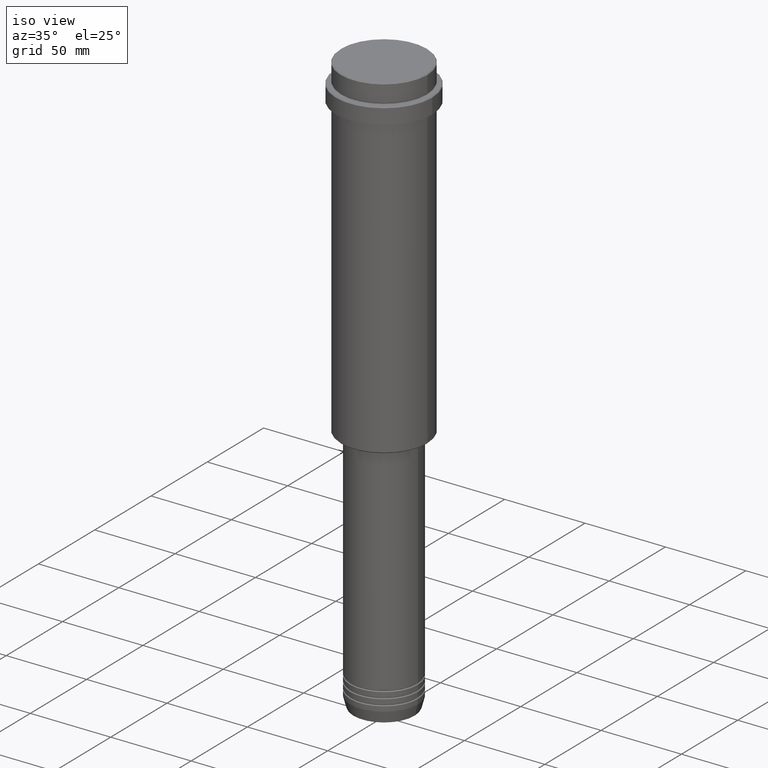
[diagram: clean part render]
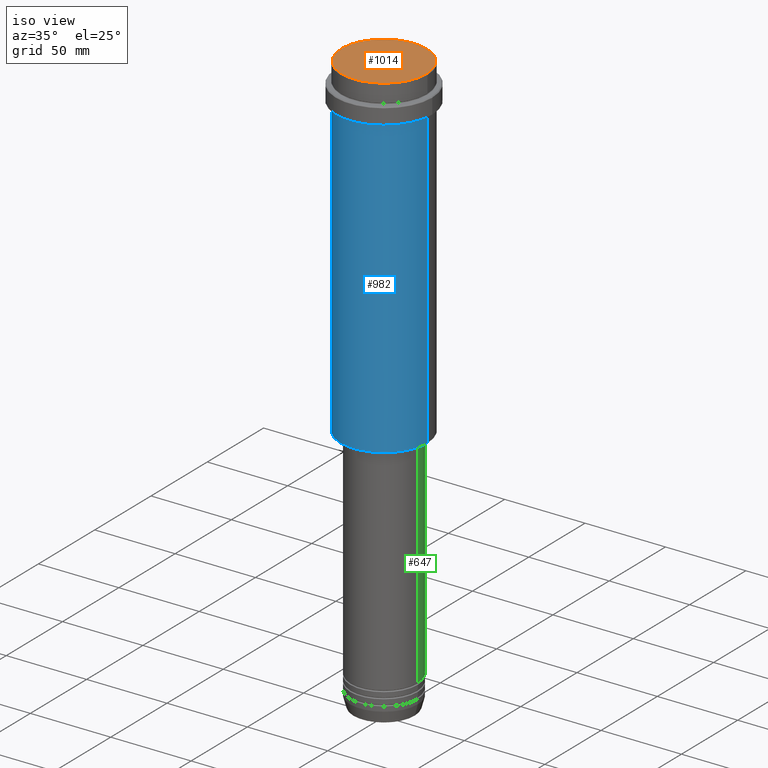
[diagram: same view with three faces highlighted in distinct colors, each labeled with its STEP entity id]
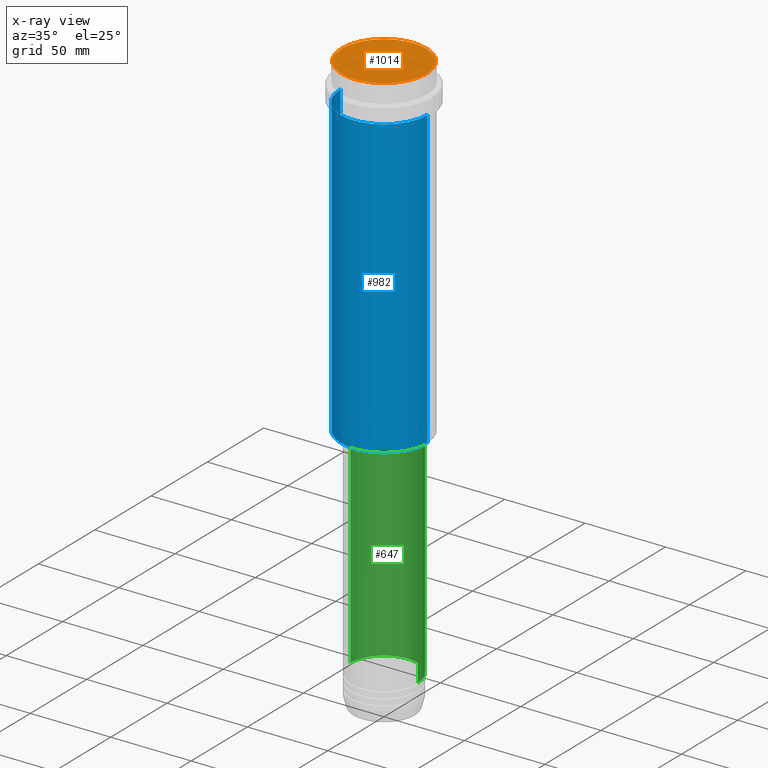
[diagram: x-ray of the same camera — body ghosted, the three highlighted faces saturated]
A machine part, iso view with three faces highlighted in distinct colors.
The next image is the same camera in x-ray (body ghosted, the three faces saturated) — at least one of them is partly hidden behind the body in this view.
Their STEP definitions:

[orange] entity #1014 — the highlighted planar face has unit normal (0, -0, 1).
#28 = DIRECTION ( 'NONE',  ( -0.000000000000000000, -0.000000000000000000, 1.000000000000000000 ) ) ;
#69 = DIRECTION ( 'NONE',  ( 1.000000000000000000, 0.000000000000000000, 0.000000000000000000 ) ) ;
#134 = AXIS2_PLACEMENT_3D ( 'NONE', #1004, #28, #1027 ) ;
#204 = VERTEX_POINT ( 'NONE', #855 ) ;
#207 = CIRCLE ( 'NONE', #134, 26.49999999999996803 ) ;
#296 = VERTEX_POINT ( 'NONE', #1302 ) ;
#342 = EDGE_LOOP ( 'NONE', ( #515, #617 ) ) ;
#438 = CARTESIAN_POINT ( 'NONE',  ( 0.000000000000000000, 0.000000000000000000, 0.000000000000000000 ) ) ;
#457 = DIRECTION ( 'NONE',  ( 1.000000000000000000, 0.000000000000000000, 0.000000000000000000 ) ) ;
#506 = AXIS2_PLACEMENT_3D ( 'NONE', #1265, #1045, #69 ) ;
#515 = ORIENTED_EDGE ( 'NONE', *, *, #846, .T. ) ;
#617 = ORIENTED_EDGE ( 'NONE', *, *, #715, .T. ) ;
#634 = PLANE ( 'NONE',  #506 ) ;
#646 = AXIS2_PLACEMENT_3D ( 'NONE', #438, #979, #457 ) ;
#715 = EDGE_CURVE ( 'NONE', #296, #204, #1245, .T. ) ;
#725 = FACE_OUTER_BOUND ( 'NONE', #342, .T. ) ;
#846 = EDGE_CURVE ( 'NONE', #204, #296, #207, .T. ) ;
#855 = CARTESIAN_POINT ( 'NONE',  ( -26.49999999999996803, 0.000000000000000000, 0.000000000000000000 ) ) ;
#979 = DIRECTION ( 'NONE',  ( -0.000000000000000000, -0.000000000000000000, 1.000000000000000000 ) ) ;
#1004 = CARTESIAN_POINT ( 'NONE',  ( 0.000000000000000000, 0.000000000000000000, 0.000000000000000000 ) ) ;
#1014 = ADVANCED_FACE ( 'NONE', ( #725 ), #634, .T. ) ;
#1027 = DIRECTION ( 'NONE',  ( 1.000000000000000000, 0.000000000000000000, 0.000000000000000000 ) ) ;
#1045 = DIRECTION ( 'NONE',  ( 0.000000000000000000, -0.000000000000000000, 1.000000000000000000 ) ) ;
#1245 = CIRCLE ( 'NONE', #646, 26.49999999999996803 ) ;
#1265 = CARTESIAN_POINT ( 'NONE',  ( 0.000000000000000000, 0.000000000000000000, 0.000000000000000000 ) ) ;
#1302 = CARTESIAN_POINT ( 'NONE',  ( 26.49999999999996803, 3.275930187719167580E-15, 0.000000000000000000 ) ) ;

[blue] entity #982 — the highlighted cylindrical surface (partial cylindrical patch) has radius 27 mm, axis along (-0, -0, 1).
#72 = EDGE_CURVE ( 'NONE', #468, #615, #275, .T. ) ;
#90 = DIRECTION ( 'NONE',  ( 1.000000000000000000, 0.000000000000000000, 0.000000000000000000 ) ) ;
#93 = DIRECTION ( 'NONE',  ( -1.000000000000000000, 0.000000000000000000, 0.000000000000000000 ) ) ;
#128 = AXIS2_PLACEMENT_3D ( 'NONE', #193, #958, #93 ) ;
#152 = EDGE_CURVE ( 'NONE', #479, #187, #301, .T. ) ;
#187 = VERTEX_POINT ( 'NONE', #1056 ) ;
#193 = CARTESIAN_POINT ( 'NONE',  ( 0.000000000000000000, 0.000000000000000000, -207.5000000000001421 ) ) ;
#275 = CIRCLE ( 'NONE', #128, 26.99999999999999645 ) ;
#301 = CIRCLE ( 'NONE', #957, 26.99999999999999645 ) ;
#319 = CARTESIAN_POINT ( 'NONE',  ( 0.000000000000000000, 0.000000000000000000, 0.000000000000000000 ) ) ;
#360 = LINE ( 'NONE', #826, #1310 ) ;
#379 = CARTESIAN_POINT ( 'NONE',  ( -26.99999999999999645, 3.306546357697853339E-15, -207.5000000000001421 ) ) ;
#382 = ORIENTED_EDGE ( 'NONE', *, *, #72, .T. ) ;
#398 = VECTOR ( 'NONE', #680, 1000.000000000000000 ) ;
#401 = CYLINDRICAL_SURFACE ( 'NONE', #1135, 26.99999999999999645 ) ;
#468 = VERTEX_POINT ( 'NONE', #379 ) ;
#479 = VERTEX_POINT ( 'NONE', #1239 ) ;
#615 = VERTEX_POINT ( 'NONE', #635 ) ;
#635 = CARTESIAN_POINT ( 'NONE',  ( 26.99999999999999645, 0.000000000000000000, -207.5000000000001421 ) ) ;
#680 = DIRECTION ( 'NONE',  ( -0.000000000000000000, -0.000000000000000000, 1.000000000000000000 ) ) ;
#690 = ORIENTED_EDGE ( 'NONE', *, *, #1329, .T. ) ;
#826 = CARTESIAN_POINT ( 'NONE',  ( -26.99999999999999645, 3.306546357697853339E-15, 0.000000000000000000 ) ) ;
#847 = CARTESIAN_POINT ( 'NONE',  ( 26.99999999999999645, 0.000000000000000000, 0.000000000000000000 ) ) ;
#863 = DIRECTION ( 'NONE',  ( 1.000000000000000000, 0.000000000000000000, 0.000000000000000000 ) ) ;
#870 = ORIENTED_EDGE ( 'NONE', *, *, #1139, .F. ) ;
#885 = EDGE_LOOP ( 'NONE', ( #870, #382, #690, #1359 ) ) ;
#944 = LINE ( 'NONE', #847, #398 ) ;
#957 = AXIS2_PLACEMENT_3D ( 'NONE', #969, #1173, #863 ) ;
#958 = DIRECTION ( 'NONE',  ( -0.000000000000000000, -0.000000000000000000, 1.000000000000000000 ) ) ;
#969 = CARTESIAN_POINT ( 'NONE',  ( 0.000000000000000000, 0.000000000000000000, -23.00000000000000000 ) ) ;
#982 = ADVANCED_FACE ( 'NONE', ( #1405 ), #401, .T. ) ;
#1056 = CARTESIAN_POINT ( 'NONE',  ( 26.99999999999999645, 0.000000000000000000, -23.00000000000000000 ) ) ;
#1067 = DIRECTION ( 'NONE',  ( -0.000000000000000000, -0.000000000000000000, 1.000000000000000000 ) ) ;
#1135 = AXIS2_PLACEMENT_3D ( 'NONE', #319, #1067, #90 ) ;
#1139 = EDGE_CURVE ( 'NONE', #468, #479, #360, .T. ) ;
#1173 = DIRECTION ( 'NONE',  ( -0.000000000000000000, -0.000000000000000000, 1.000000000000000000 ) ) ;
#1232 = DIRECTION ( 'NONE',  ( -0.000000000000000000, -0.000000000000000000, 1.000000000000000000 ) ) ;
#1239 = CARTESIAN_POINT ( 'NONE',  ( -26.99999999999999645, 3.306546357697853339E-15, -23.00000000000000000 ) ) ;
#1310 = VECTOR ( 'NONE', #1232, 1000.000000000000000 ) ;
#1329 = EDGE_CURVE ( 'NONE', #615, #187, #944, .T. ) ;
#1359 = ORIENTED_EDGE ( 'NONE', *, *, #152, .F. ) ;
#1405 = FACE_OUTER_BOUND ( 'NONE', #885, .T. ) ;

[green] entity #647 — the highlighted cylindrical surface (partial cylindrical patch) has radius 21 mm, axis along (-0, -0, 1).
#1 = AXIS2_PLACEMENT_3D ( 'NONE', #886, #358, #1089 ) ;
#6 = LINE ( 'NONE', #1211, #105 ) ;
#24 = DIRECTION ( 'NONE',  ( -0.000000000000000000, -0.000000000000000000, 1.000000000000000000 ) ) ;
#71 = LINE ( 'NONE', #851, #782 ) ;
#74 = VERTEX_POINT ( 'NONE', #764 ) ;
#76 = CIRCLE ( 'NONE', #423, 20.99999999999999645 ) ;
#105 = VECTOR ( 'NONE', #24, 1000.000000000000000 ) ;
#154 = VERTEX_POINT ( 'NONE', #317 ) ;
#191 = DIRECTION ( 'NONE',  ( -0.000000000000000000, -0.000000000000000000, 1.000000000000000000 ) ) ;
#271 = VERTEX_POINT ( 'NONE', #560 ) ;
#297 = CARTESIAN_POINT ( 'NONE',  ( 0.000000000000000000, 0.000000000000000000, -208.9999999999999716 ) ) ;
#317 = CARTESIAN_POINT ( 'NONE',  ( -21.00000000000000000, 2.571758278209441661E-15, -343.9999999999999432 ) ) ;
#348 = CYLINDRICAL_SURFACE ( 'NONE', #1, 20.99999999999999645 ) ;
#358 = DIRECTION ( 'NONE',  ( -0.000000000000000000, -0.000000000000000000, 1.000000000000000000 ) ) ;
#405 = DIRECTION ( 'NONE',  ( -0.000000000000000000, -0.000000000000000000, 1.000000000000000000 ) ) ;
#418 = ORIENTED_EDGE ( 'NONE', *, *, #598, .F. ) ;
#423 = AXIS2_PLACEMENT_3D ( 'NONE', #297, #405, #758 ) ;
#444 = ORIENTED_EDGE ( 'NONE', *, *, #1240, .F. ) ;
#560 = CARTESIAN_POINT ( 'NONE',  ( -20.99999999999999645, 2.571758278209441267E-15, -208.9999999999999716 ) ) ;
#587 = EDGE_CURVE ( 'NONE', #74, #154, #1047, .T. ) ;
#590 = ORIENTED_EDGE ( 'NONE', *, *, #587, .T. ) ;
#598 = EDGE_CURVE ( 'NONE', #74, #673, #71, .T. ) ;
#647 = ADVANCED_FACE ( 'NONE', ( #786 ), #348, .T. ) ;
#650 = EDGE_CURVE ( 'NONE', #154, #271, #6, .T. ) ;
#673 = VERTEX_POINT ( 'NONE', #1304 ) ;
#758 = DIRECTION ( 'NONE',  ( 1.000000000000000000, 0.000000000000000000, 0.000000000000000000 ) ) ;
#764 = CARTESIAN_POINT ( 'NONE',  ( 21.00000000000000000, 0.000000000000000000, -343.9999999999999432 ) ) ;
#782 = VECTOR ( 'NONE', #191, 1000.000000000000000 ) ;
#786 = FACE_OUTER_BOUND ( 'NONE', #1303, .T. ) ;
#851 = CARTESIAN_POINT ( 'NONE',  ( 20.99999999999999645, 0.000000000000000000, 0.000000000000000000 ) ) ;
#867 = DIRECTION ( 'NONE',  ( 1.000000000000000000, 0.000000000000000000, 0.000000000000000000 ) ) ;
#879 = ORIENTED_EDGE ( 'NONE', *, *, #650, .T. ) ;
#886 = CARTESIAN_POINT ( 'NONE',  ( 0.000000000000000000, 0.000000000000000000, 0.000000000000000000 ) ) ;
#1047 = CIRCLE ( 'NONE', #1113, 21.00000000000000000 ) ;
#1077 = CARTESIAN_POINT ( 'NONE',  ( 0.000000000000000000, 0.000000000000000000, -343.9999999999999432 ) ) ;
#1089 = DIRECTION ( 'NONE',  ( 1.000000000000000000, 0.000000000000000000, 0.000000000000000000 ) ) ;
#1113 = AXIS2_PLACEMENT_3D ( 'NONE', #1077, #1285, #867 ) ;
#1211 = CARTESIAN_POINT ( 'NONE',  ( -20.99999999999999645, 2.571758278209441267E-15, 0.000000000000000000 ) ) ;
#1240 = EDGE_CURVE ( 'NONE', #673, #271, #76, .T. ) ;
#1285 = DIRECTION ( 'NONE',  ( -0.000000000000000000, -0.000000000000000000, 1.000000000000000000 ) ) ;
#1303 = EDGE_LOOP ( 'NONE', ( #590, #879, #444, #418 ) ) ;
#1304 = CARTESIAN_POINT ( 'NONE',  ( 20.99999999999999645, 0.000000000000000000, -208.9999999999999716 ) ) ;